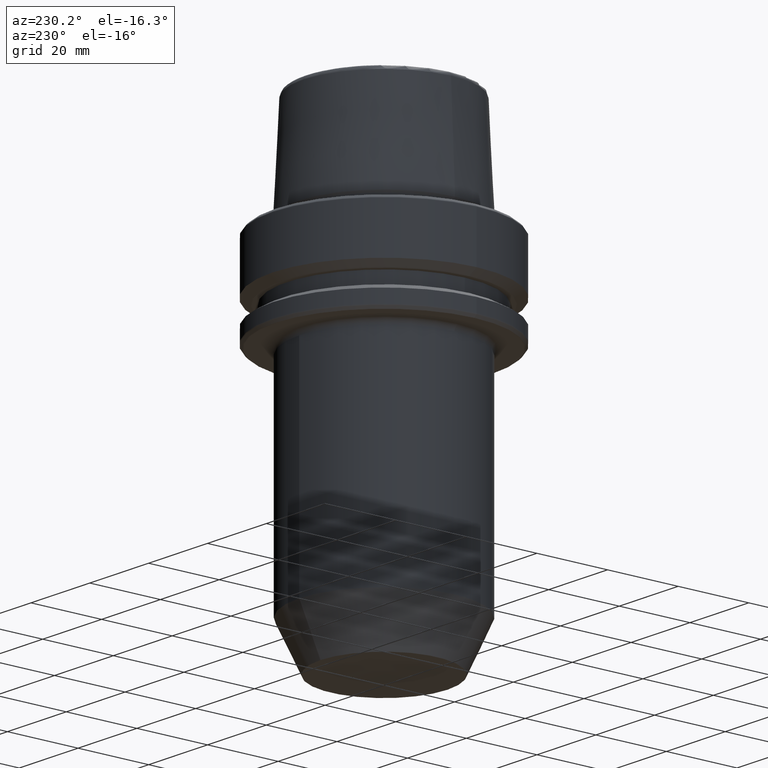
[diagram: clean part render]
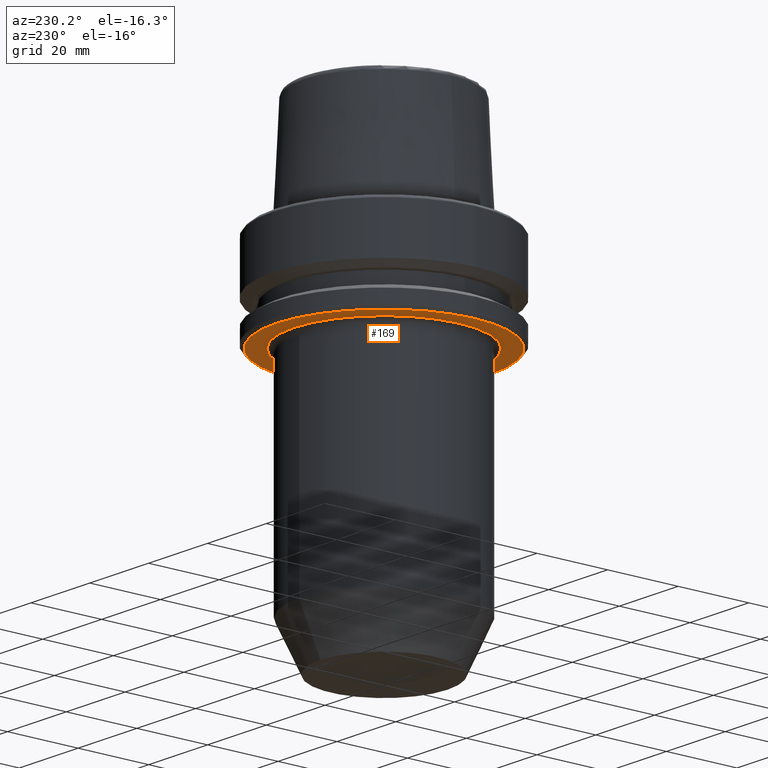
[diagram: same view with one face highlighted and labeled with its STEP entity id]
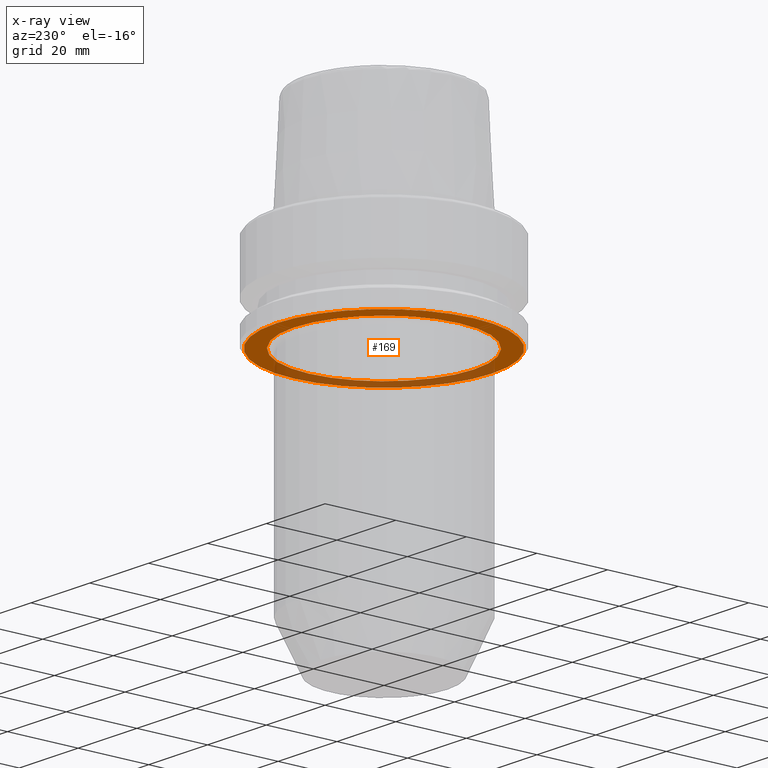
[diagram: x-ray of the same camera — body ghosted, the highlighted face saturated]
A machine part, auxiliary view. The second image highlights one B-rep face of the part: STEP entity #169.
The next image is the same camera in x-ray: the body ghosted, the highlighted face saturated — about 33% of this face is hidden behind the body in this view.
In plain terms, the highlighted planar face has unit normal (0, -0, 1).
Its self-contained STEP definition (entity closure, byte-faithful):
#85 = DIRECTION ( 'NONE',  ( -0.0000000000000000000, -0.0000000000000000000, 1.000000000000000000 ) ) ;
#95 = DIRECTION ( 'NONE',  ( 1.000000000000000000, 0.0000000000000000000, 0.0000000000000000000 ) ) ;
#140 = CARTESIAN_POINT ( 'NONE',  ( 25.50000000000000400, 4.964784320867637100E-017, -26.00000000000001100 ) ) ;
#169 = ADVANCED_FACE ( 'NONE', ( #409, #970 ), #1068, .F. ) ;
#208 = DIRECTION ( 'NONE',  ( -0.0000000000000000000, -0.0000000000000000000, 1.000000000000000000 ) ) ;
#244 = CIRCLE ( 'NONE', #631, 30.53431457505076100 ) ;
#270 = EDGE_CURVE ( 'NONE', #558, #1061, #378, .T. ) ;
#283 = AXIS2_PLACEMENT_3D ( 'NONE', #432, #1122, #529 ) ;
#303 = CARTESIAN_POINT ( 'NONE',  ( 30.53431457505076100, 0.0000000000000000000, -26.00000000000001100 ) ) ;
#328 = ORIENTED_EDGE ( 'NONE', *, *, #1261, .F. ) ;
#378 = CIRCLE ( 'NONE', #435, 25.50000000000000400 ) ;
#388 = ORIENTED_EDGE ( 'NONE', *, *, #270, .T. ) ;
#409 = FACE_BOUND ( 'NONE', #422, .T. ) ;
#422 = EDGE_LOOP ( 'NONE', ( #852, #388 ) ) ;
#432 = CARTESIAN_POINT ( 'NONE',  ( 0.0000000000000000000, 4.964784320867637100E-017, -26.00000000000001100 ) ) ;
#435 = AXIS2_PLACEMENT_3D ( 'NONE', #800, #208, #902 ) ;
#497 = DIRECTION ( 'NONE',  ( -0.0000000000000000000, -0.0000000000000000000, 1.000000000000000000 ) ) ;
#529 = DIRECTION ( 'NONE',  ( 1.000000000000000000, 0.0000000000000000000, 0.0000000000000000000 ) ) ;
#558 = VERTEX_POINT ( 'NONE', #1148 ) ;
#631 = AXIS2_PLACEMENT_3D ( 'NONE', #682, #85, #776 ) ;
#682 = CARTESIAN_POINT ( 'NONE',  ( 0.0000000000000000000, 0.0000000000000000000, -26.00000000000001100 ) ) ;
#692 = CIRCLE ( 'NONE', #283, 25.50000000000000400 ) ;
#693 = DIRECTION ( 'NONE',  ( 0.0000000000000000000, -0.0000000000000000000, 1.000000000000000000 ) ) ;
#735 = CARTESIAN_POINT ( 'NONE',  ( -30.53431457505076100, 3.756694181974138600E-015, -26.00000000000001100 ) ) ;
#776 = DIRECTION ( 'NONE',  ( 1.000000000000000000, 0.0000000000000000000, 0.0000000000000000000 ) ) ;
#796 = EDGE_LOOP ( 'NONE', ( #328, #849 ) ) ;
#800 = CARTESIAN_POINT ( 'NONE',  ( 0.0000000000000000000, 4.964784320867637100E-017, -26.00000000000001100 ) ) ;
#815 = EDGE_CURVE ( 'NONE', #1061, #558, #692, .T. ) ;
#849 = ORIENTED_EDGE ( 'NONE', *, *, #883, .F. ) ;
#852 = ORIENTED_EDGE ( 'NONE', *, *, #815, .T. ) ;
#873 = CIRCLE ( 'NONE', #1000, 30.53431457505076100 ) ;
#883 = EDGE_CURVE ( 'NONE', #1075, #1088, #873, .T. ) ;
#902 = DIRECTION ( 'NONE',  ( 1.000000000000000000, 0.0000000000000000000, 0.0000000000000000000 ) ) ;
#970 = FACE_OUTER_BOUND ( 'NONE', #796, .T. ) ;
#1000 = AXIS2_PLACEMENT_3D ( 'NONE', #1086, #497, #1195 ) ;
#1061 = VERTEX_POINT ( 'NONE', #140 ) ;
#1068 = PLANE ( 'NONE',  #1164 ) ;
#1075 = VERTEX_POINT ( 'NONE', #735 ) ;
#1086 = CARTESIAN_POINT ( 'NONE',  ( 0.0000000000000000000, 0.0000000000000000000, -26.00000000000001100 ) ) ;
#1088 = VERTEX_POINT ( 'NONE', #303 ) ;
#1122 = DIRECTION ( 'NONE',  ( -0.0000000000000000000, -0.0000000000000000000, 1.000000000000000000 ) ) ;
#1148 = CARTESIAN_POINT ( 'NONE',  ( -25.50000000000000400, 3.172497181034427300E-015, -26.00000000000001100 ) ) ;
#1164 = AXIS2_PLACEMENT_3D ( 'NONE', #1272, #693, #95 ) ;
#1195 = DIRECTION ( 'NONE',  ( 1.000000000000000000, 0.0000000000000000000, 0.0000000000000000000 ) ) ;
#1261 = EDGE_CURVE ( 'NONE', #1088, #1075, #244, .T. ) ;
#1272 = CARTESIAN_POINT ( 'NONE',  ( 0.0000000000000000000, 30.53431457505076100, -26.00000000000001100 ) ) ;